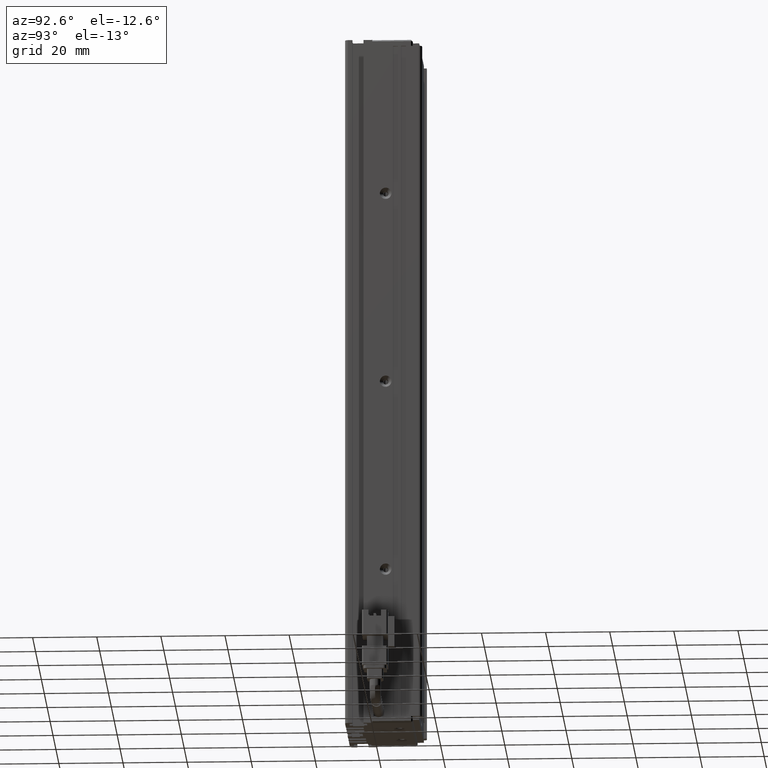
[diagram: clean part render]
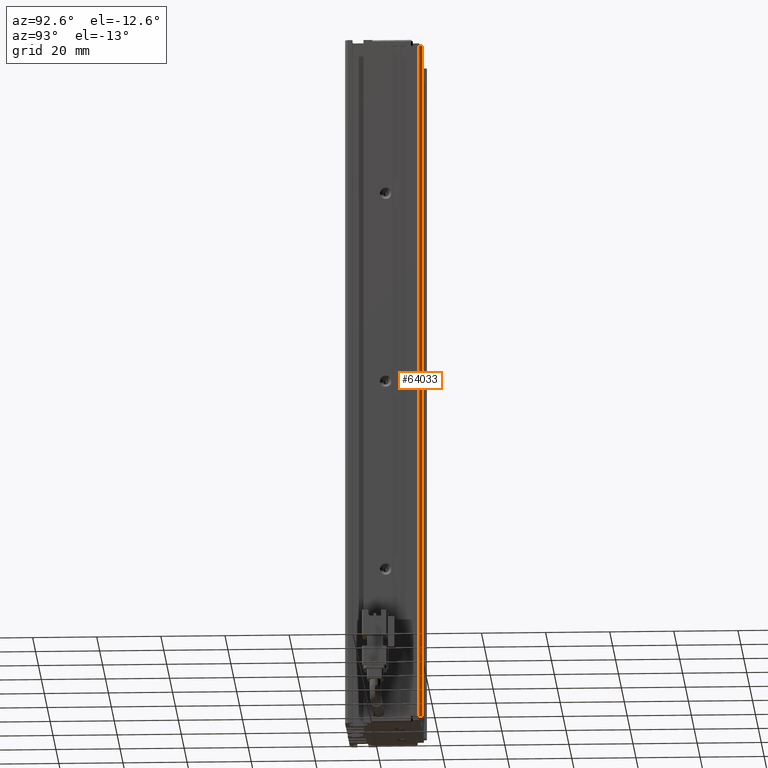
[diagram: same view with one face highlighted and labeled with its STEP entity id]
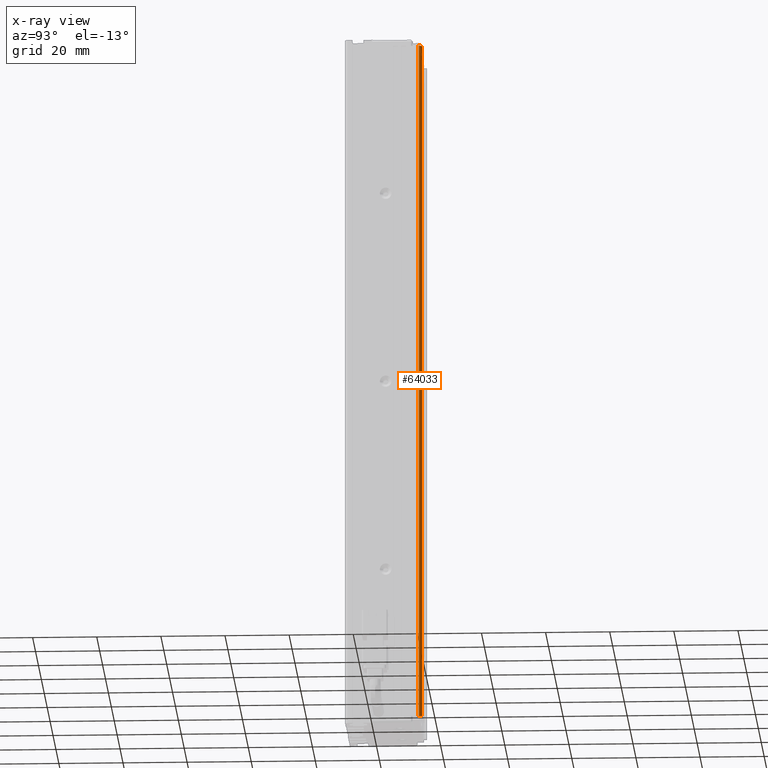
[diagram: x-ray of the same camera — body ghosted, the highlighted face saturated]
A machine part, auxiliary view. The second image highlights one B-rep face of the part: STEP entity #64033.
The next image is the same camera in x-ray: the body ghosted, the highlighted face saturated — about 0% of this face is hidden behind the body in this view.
In plain terms, the highlighted cylindrical surface (edge-blend (fillet) strip) has radius 1 mm, axis along (-0, -0, -1).
Its self-contained STEP definition (entity closure, byte-faithful):
#2777 = VERTEX_POINT ( 'NONE', #57662 ) ;
#3073 = DIRECTION ( 'NONE',  ( -0.0000000000000000000, -0.0000000000000000000, -1.000000000000000000 ) ) ;
#11766 = EDGE_CURVE ( 'NONE', #85462, #25781, #25872, .T. ) ;
#13872 = LINE ( 'NONE', #50637, #48916 ) ;
#15912 = EDGE_CURVE ( 'NONE', #60093, #85462, #89883, .T. ) ;
#16633 = EDGE_CURVE ( 'NONE', #2777, #60093, #72683, .T. ) ;
#23540 = ORIENTED_EDGE ( 'NONE', *, *, #15912, .T. ) ;
#25781 = VERTEX_POINT ( 'NONE', #54806 ) ;
#25872 = CIRCLE ( 'NONE', #85180, 1.000000000000000900 ) ;
#30606 = AXIS2_PLACEMENT_3D ( 'NONE', #73935, #81191, #46632 ) ;
#31391 = EDGE_LOOP ( 'NONE', ( #31937, #47781, #23540, #37788 ) ) ;
#31937 = ORIENTED_EDGE ( 'NONE', *, *, #43677, .T. ) ;
#37788 = ORIENTED_EDGE ( 'NONE', *, *, #11766, .T. ) ;
#38935 = DIRECTION ( 'NONE',  ( -0.0000000000000000000, -0.0000000000000000000, -1.000000000000000000 ) ) ;
#43677 = EDGE_CURVE ( 'NONE', #25781, #2777, #13872, .T. ) ;
#46632 = DIRECTION ( 'NONE',  ( -1.000000000000000000, 0.0000000000000000000, 0.0000000000000000000 ) ) ;
#47287 = CARTESIAN_POINT ( 'NONE',  ( 57.42537974683541100, 34.99073232304837700, -6.000000000000005300 ) ) ;
#47781 = ORIENTED_EDGE ( 'NONE', *, *, #16633, .T. ) ;
#48916 = VECTOR ( 'NONE', #78252, 1000.000000000000000 ) ;
#49906 = CARTESIAN_POINT ( 'NONE',  ( 57.42537974683541800, 34.99073232304837700, -222.0000000000000000 ) ) ;
#50637 = CARTESIAN_POINT ( 'NONE',  ( 58.42537974683542500, 33.99073232304837700, -6.000000000000005300 ) ) ;
#52176 = FACE_OUTER_BOUND ( 'NONE', #31391, .T. ) ;
#54806 = CARTESIAN_POINT ( 'NONE',  ( 58.42537974683542500, 33.99073232304837700, -8.000000000000007100 ) ) ;
#57662 = CARTESIAN_POINT ( 'NONE',  ( 58.42537974683542500, 33.99073232304837700, -222.0000000000000000 ) ) ;
#60093 = VERTEX_POINT ( 'NONE', #49906 ) ;
#61320 = DIRECTION ( 'NONE',  ( 0.0000000000000000000, 0.0000000000000000000, 1.000000000000000000 ) ) ;
#62497 = VECTOR ( 'NONE', #61320, 1000.000000000000000 ) ;
#64033 = ADVANCED_FACE ( 'NONE', ( #52176 ), #85063, .T. ) ;
#72683 = CIRCLE ( 'NONE', #30606, 1.000000000000000900 ) ;
#73935 = CARTESIAN_POINT ( 'NONE',  ( 57.42537974683541800, 33.99073232304837700, -222.0000000000000000 ) ) ;
#78252 = DIRECTION ( 'NONE',  ( -0.0000000000000000000, -0.0000000000000000000, -1.000000000000000000 ) ) ;
#78718 = CARTESIAN_POINT ( 'NONE',  ( 57.42537974683541800, 34.99073232304837700, -8.000000000000007100 ) ) ;
#79385 = AXIS2_PLACEMENT_3D ( 'NONE', #86901, #3073, #81373 ) ;
#80863 = CARTESIAN_POINT ( 'NONE',  ( 57.42537974683541800, 33.99073232304837700, -8.000000000000007100 ) ) ;
#81191 = DIRECTION ( 'NONE',  ( 0.0000000000000000000, 0.0000000000000000000, 1.000000000000000000 ) ) ;
#81373 = DIRECTION ( 'NONE',  ( -1.000000000000000000, 0.0000000000000000000, 0.0000000000000000000 ) ) ;
#85063 = CYLINDRICAL_SURFACE ( 'NONE', #79385, 1.000000000000000900 ) ;
#85180 = AXIS2_PLACEMENT_3D ( 'NONE', #80863, #38935, #87936 ) ;
#85462 = VERTEX_POINT ( 'NONE', #78718 ) ;
#86901 = CARTESIAN_POINT ( 'NONE',  ( 57.42537974683541800, 33.99073232304837700, -6.000000000000005300 ) ) ;
#87936 = DIRECTION ( 'NONE',  ( -1.000000000000000000, 0.0000000000000000000, 0.0000000000000000000 ) ) ;
#89883 = LINE ( 'NONE', #47287, #62497 ) ;